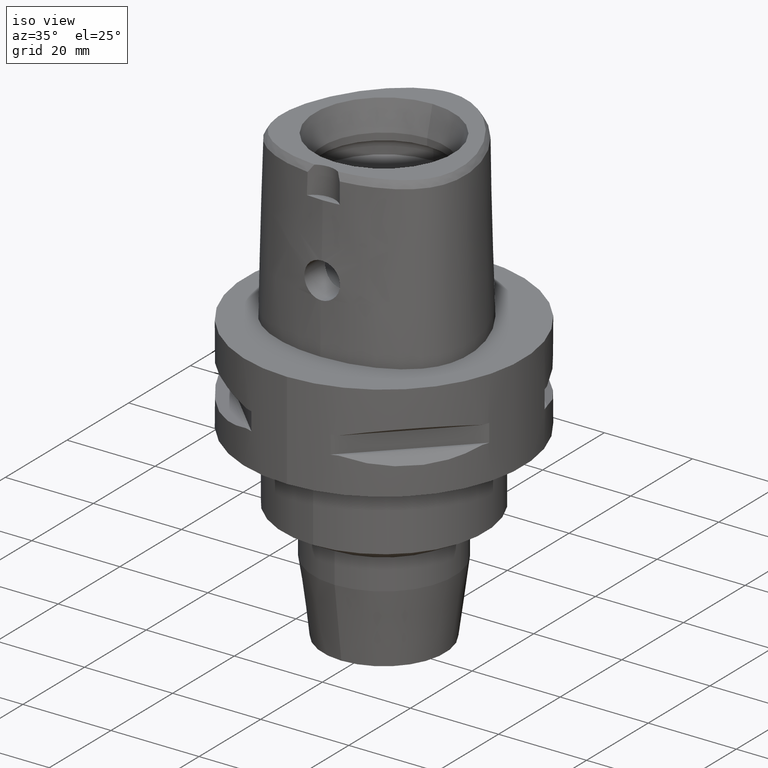
[diagram: clean part render]
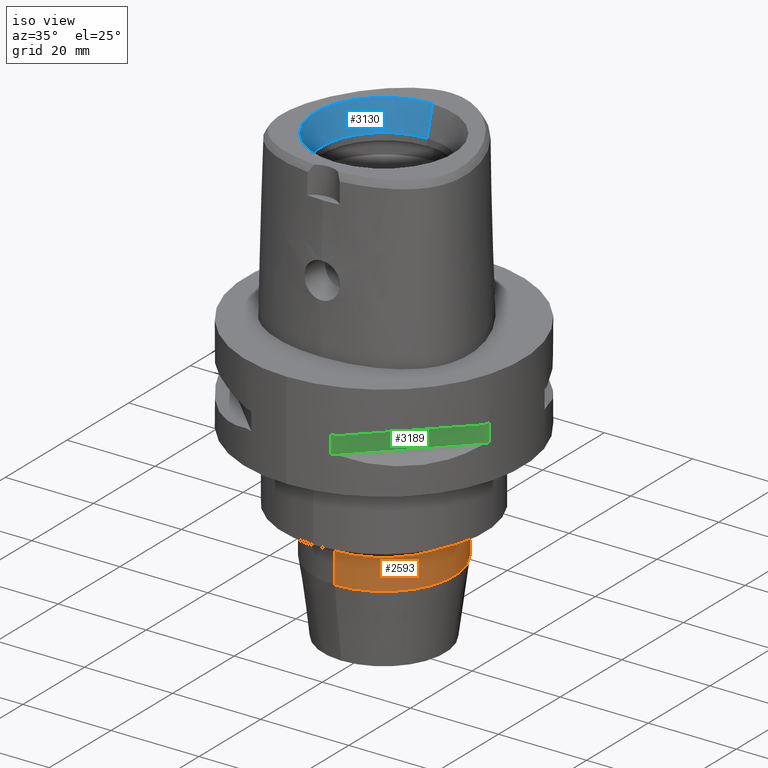
[diagram: same view with three faces highlighted in distinct colors, each labeled with its STEP entity id]
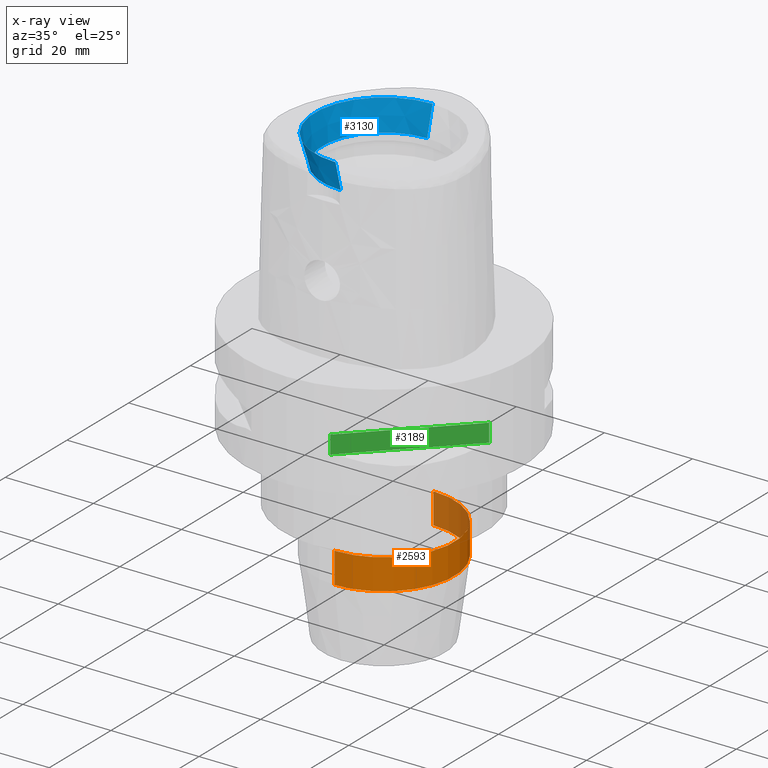
[diagram: x-ray of the same camera — body ghosted, the three highlighted faces saturated]
A machine part, iso view with three faces highlighted in distinct colors.
The next image is the same camera in x-ray (body ghosted, the three faces saturated) — at least one of them is partly hidden behind the body in this view.
Their STEP definitions:

[orange] entity #2593 — the highlighted cylindrical surface (partial cylindrical patch) has radius 16 mm, axis along (0, 0, -1).
#627=CARTESIAN_POINT('',(0.E0,0.E0,-4.1637E1));
#628=DIRECTION('',(0.E0,0.E0,-1.E0));
#629=DIRECTION('',(0.E0,1.E0,0.E0));
#630=AXIS2_PLACEMENT_3D('',#627,#628,#629);
#643=DIRECTION('',(0.E0,1.218430476550E-14,-1.E0));
#644=VECTOR('',#643,6.997947764129E0);
#645=CARTESIAN_POINT('',(0.E0,1.6E1,-4.1637E1));
#646=LINE('',#645,#644);
#650=DIRECTION('',(0.E0,-1.218430476550E-14,-1.E0));
#651=VECTOR('',#650,6.997947764129E0);
#652=CARTESIAN_POINT('',(0.E0,-1.6E1,-4.1637E1));
#653=LINE('',#652,#651);
#679=CARTESIAN_POINT('',(0.E0,0.E0,-4.863494776413E1));
#680=DIRECTION('',(0.E0,0.E0,1.E0));
#681=DIRECTION('',(0.E0,-1.E0,0.E0));
#682=AXIS2_PLACEMENT_3D('',#679,#680,#681);
#1616=CARTESIAN_POINT('',(0.E0,1.6E1,-4.1637E1));
#1617=VERTEX_POINT('',#1616);
#1618=CARTESIAN_POINT('',(0.E0,-1.6E1,-4.1637E1));
#1619=VERTEX_POINT('',#1618);
#1620=CARTESIAN_POINT('',(0.E0,1.6E1,-4.863494776413E1));
#1621=VERTEX_POINT('',#1620);
#1622=CARTESIAN_POINT('',(0.E0,-1.6E1,-4.863494776413E1));
#1623=VERTEX_POINT('',#1622);
#2579=CARTESIAN_POINT('',(0.E0,0.E0,3.25E0));
#2580=DIRECTION('',(0.E0,0.E0,-1.E0));
#2581=DIRECTION('',(0.E0,-1.E0,0.E0));
#2582=AXIS2_PLACEMENT_3D('',#2579,#2580,#2581);
#2583=CYLINDRICAL_SURFACE('',#2582,1.6E1);
#2585=ORIENTED_EDGE('',*,*,#2584,.T.);
#2587=ORIENTED_EDGE('',*,*,#2586,.F.);
#2589=ORIENTED_EDGE('',*,*,#2588,.F.);
#2590=ORIENTED_EDGE('',*,*,#2572,.F.);
#2591=EDGE_LOOP('',(#2585,#2587,#2589,#2590));
#2592=FACE_OUTER_BOUND('',#2591,.F.);
#631=CIRCLE('',#630,1.6E1);
#683=CIRCLE('',#682,1.6E1);
#2572=EDGE_CURVE('',#1617,#1619,#631,.T.);
#2584=EDGE_CURVE('',#1617,#1621,#646,.T.);
#2586=EDGE_CURVE('',#1623,#1621,#683,.T.);
#2588=EDGE_CURVE('',#1619,#1623,#653,.T.);
#2593=ADVANCED_FACE('',(#2592),#2583,.T.);

[blue] entity #3130 — the highlighted conical surface has half-angle 15 deg.
#124=CARTESIAN_POINT('',(0.E0,0.E0,3.8E1));
#125=DIRECTION('',(0.E0,0.E0,1.E0));
#126=DIRECTION('',(0.E0,1.E0,0.E0));
#127=AXIS2_PLACEMENT_3D('',#124,#125,#126);
#1188=CARTESIAN_POINT('',(0.E0,0.E0,3.16E1));
#1189=DIRECTION('',(0.E0,0.E0,1.E0));
#1190=DIRECTION('',(0.E0,1.E0,0.E0));
#1191=AXIS2_PLACEMENT_3D('',#1188,#1189,#1190);
#1196=DIRECTION('',(0.E0,-2.588190451026E-1,9.659258262891E-1));
#1197=VECTOR('',#1196,6.625767554625E0);
#1198=CARTESIAN_POINT('',(0.E0,-1.4E1,3.16E1));
#1199=LINE('',#1198,#1197);
#1211=DIRECTION('',(0.E0,2.588190451026E-1,9.659258262891E-1));
#1212=VECTOR('',#1211,6.625767554625E0);
#1213=CARTESIAN_POINT('',(0.E0,1.4E1,3.16E1));
#1214=LINE('',#1213,#1212);
#1525=CARTESIAN_POINT('',(0.E0,1.571487483156E1,3.8E1));
#1526=CARTESIAN_POINT('',(0.E0,-1.571487483156E1,3.8E1));
#1527=VERTEX_POINT('',#1525);
#1528=VERTEX_POINT('',#1526);
#1681=CARTESIAN_POINT('',(0.E0,-1.4E1,3.16E1));
#1682=VERTEX_POINT('',#1681);
#1683=CARTESIAN_POINT('',(0.E0,1.4E1,3.16E1));
#1684=VERTEX_POINT('',#1683);
#3117=CARTESIAN_POINT('',(0.E0,0.E0,3.48E1));
#3118=DIRECTION('',(0.E0,0.E0,1.E0));
#3119=DIRECTION('',(0.E0,1.E0,0.E0));
#3120=AXIS2_PLACEMENT_3D('',#3117,#3118,#3119);
#3121=CONICAL_SURFACE('',#3120,1.485743741578E1,1.5E1);
#3122=ORIENTED_EDGE('',*,*,#1700,.F.);
#3124=ORIENTED_EDGE('',*,*,#3123,.F.);
#3125=ORIENTED_EDGE('',*,*,#3110,.T.);
#3127=ORIENTED_EDGE('',*,*,#3126,.T.);
#3128=EDGE_LOOP('',(#3122,#3124,#3125,#3127));
#3129=FACE_OUTER_BOUND('',#3128,.F.);
#128=CIRCLE('',#127,1.571487483156E1);
#1192=CIRCLE('',#1191,1.4E1);
#1700=EDGE_CURVE('',#1527,#1528,#128,.T.);
#3110=EDGE_CURVE('',#1684,#1682,#1192,.T.);
#3123=EDGE_CURVE('',#1684,#1527,#1214,.T.);
#3126=EDGE_CURVE('',#1682,#1528,#1199,.T.);
#3130=ADVANCED_FACE('',(#3129),#3121,.F.);

[green] entity #3189 — the highlighted planar face has unit normal (-0.7071, 0.7071, 0).
#471=DIRECTION('',(0.E0,0.E0,-1.E0));
#472=VECTOR('',#471,4.1E0);
#473=CARTESIAN_POINT('',(8.981198972018E0,-3.019251670572E1,-9.95E0));
#474=LINE('',#473,#472);
#489=DIRECTION('',(0.E0,0.E0,1.E0));
#490=VECTOR('',#489,4.1E0);
#491=CARTESIAN_POINT('',(3.019251670572E1,-8.981198972018E0,-1.405E1));
#492=LINE('',#491,#490);
#1268=DIRECTION('',(7.071067811865E-1,7.071067811865E-1,0.E0));
#1269=VECTOR('',#1268,2.999733321480E1);
#1270=CARTESIAN_POINT('',(8.981198972018E0,-3.019251670572E1,-9.95E0));
#1271=LINE('',#1270,#1269);
#1291=DIRECTION('',(7.071067811865E-1,7.071067811865E-1,0.E0));
#1292=VECTOR('',#1291,2.999733321480E1);
#1293=CARTESIAN_POINT('',(8.981198972018E0,-3.019251670572E1,-1.405E1));
#1294=LINE('',#1293,#1292);
#1580=CARTESIAN_POINT('',(8.981198972020E0,-3.019251670572E1,-9.95E0));
#1581=VERTEX_POINT('',#1580);
#1582=CARTESIAN_POINT('',(8.981198972018E0,-3.019251670572E1,-1.405E1));
#1583=VERTEX_POINT('',#1582);
#1587=CARTESIAN_POINT('',(3.019251670572E1,-8.981198972020E0,-1.405E1));
#1588=VERTEX_POINT('',#1587);
#1589=CARTESIAN_POINT('',(3.019251670572E1,-8.981198972018E0,-9.95E0));
#1590=VERTEX_POINT('',#1589);
#3177=CARTESIAN_POINT('',(3.372899346260E1,-5.444722215136E0,-9.95E0));
#3178=DIRECTION('',(-7.071067811865E-1,7.071067811865E-1,0.E0));
#3179=DIRECTION('',(0.E0,0.E0,-1.E0));
#3180=AXIS2_PLACEMENT_3D('',#3177,#3178,#3179);
#3181=PLANE('',#3180);
#3182=ORIENTED_EDGE('',*,*,#2454,.F.);
#3184=ORIENTED_EDGE('',*,*,#3183,.F.);
#3185=ORIENTED_EDGE('',*,*,#2446,.F.);
#3186=ORIENTED_EDGE('',*,*,#3170,.T.);
#3187=EDGE_LOOP('',(#3182,#3184,#3185,#3186));
#3188=FACE_OUTER_BOUND('',#3187,.F.);
#2446=EDGE_CURVE('',#1581,#1583,#474,.T.);
#2454=EDGE_CURVE('',#1588,#1590,#492,.T.);
#3170=EDGE_CURVE('',#1581,#1590,#1271,.T.);
#3183=EDGE_CURVE('',#1583,#1588,#1294,.T.);
#3189=ADVANCED_FACE('',(#3188),#3181,.F.);